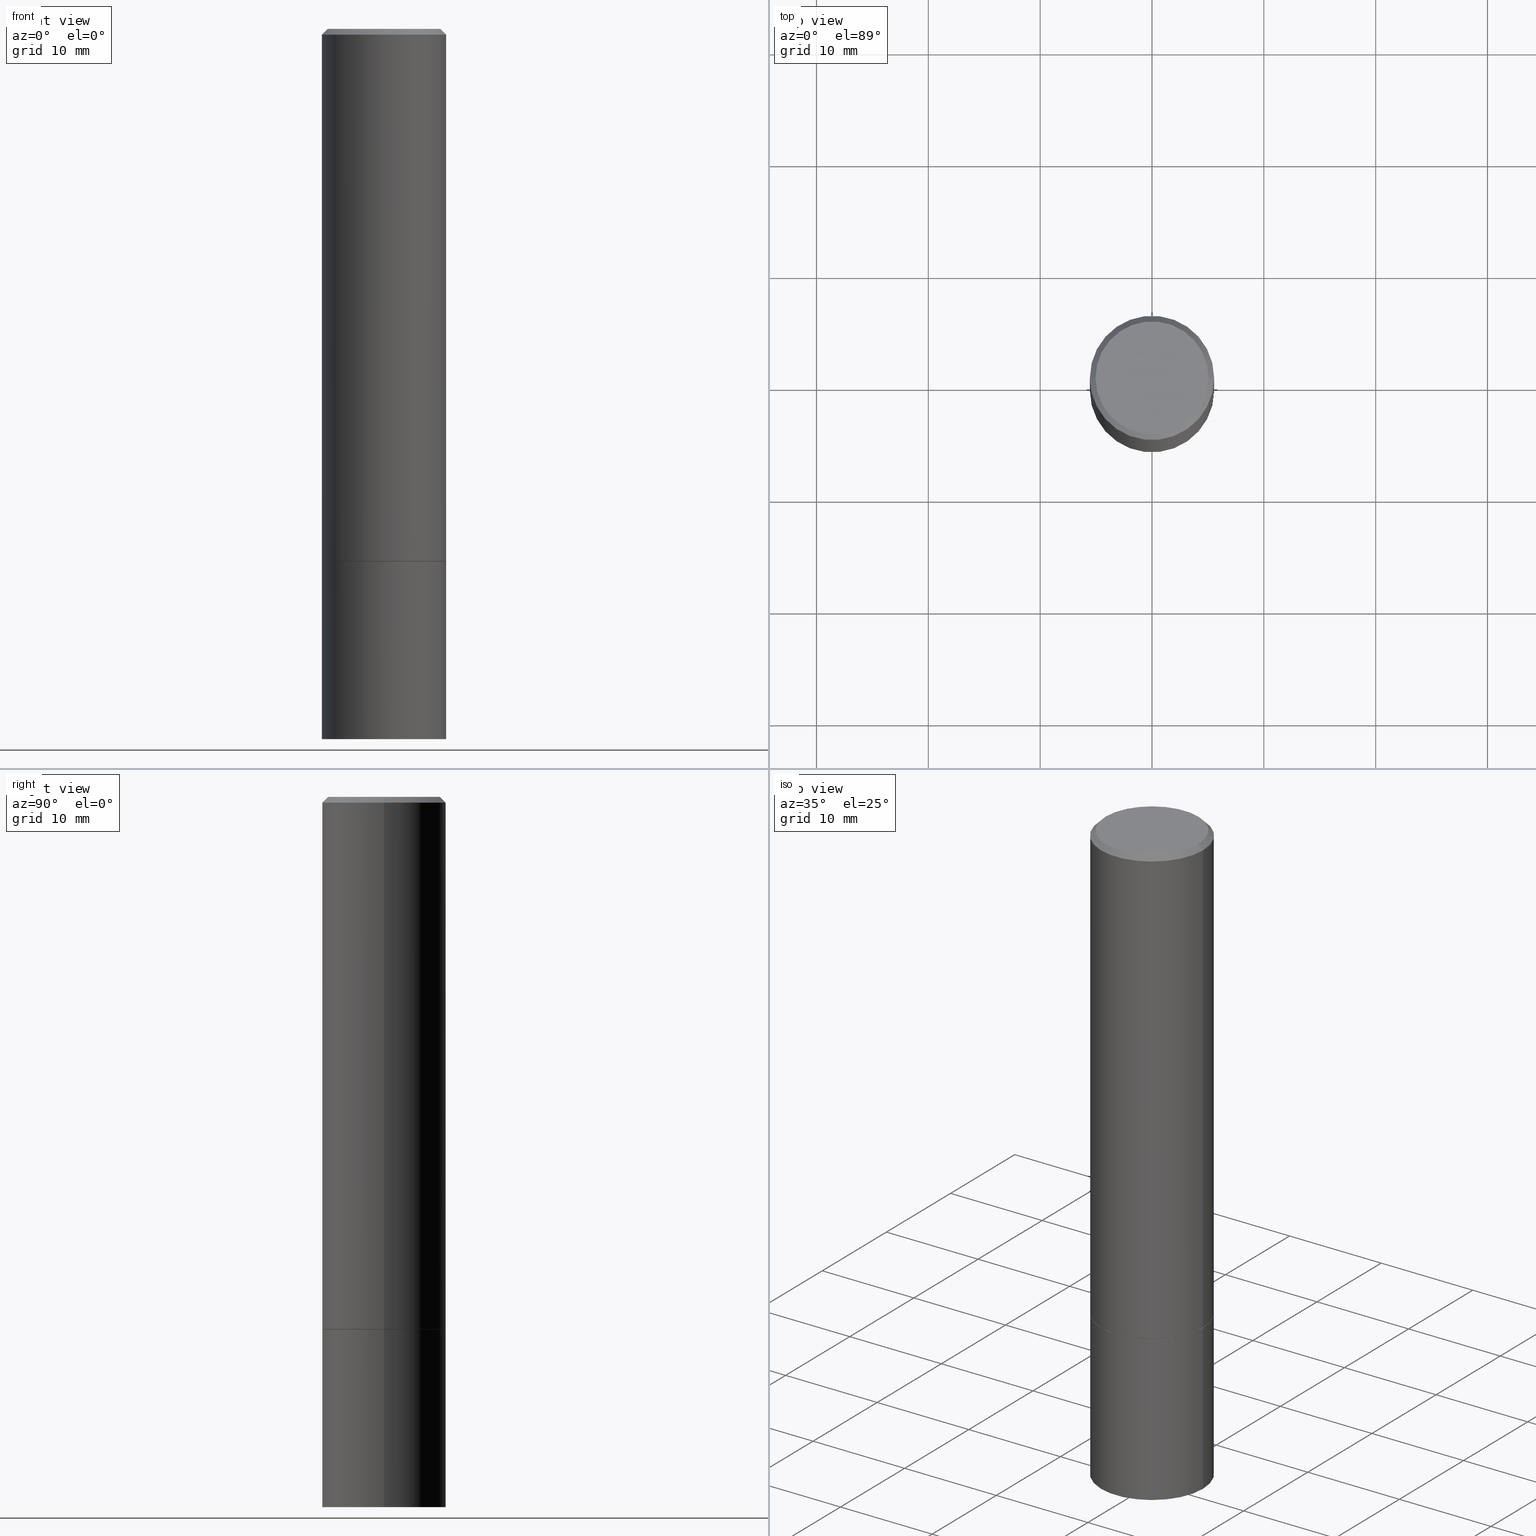
[diagram: canonical four-view strip — front | top / right | iso, engineering-drawing reading convention]
A machine part, canonical four-view strip (front | top / right | iso — engineering-drawing reading convention). The complete STEP part file that produces these views, byte-faithful:
ISO-10303-21;
HEADER;
FILE_DESCRIPTION (( 'STEP AP203' ),
    '1' );
FILE_NAME ('37159.STEP',
    '2024-02-27T20:41:24',
    ( '' ),
    ( '' ),
    'SwSTEP 2.0',
    'SolidWorks 2023',
    '' );
FILE_SCHEMA (( 'CONFIG_CONTROL_DESIGN' ));
ENDSEC;

DATA;
#1 = CARTESIAN_POINT ( 'NONE',  ( 4.585254011597131119E-29, -6.546527510330898707E-15, -1.875000000000000000 ) ) ;
#2 = DIRECTION ( 'NONE',  ( -1.000000000000000000, 6.982962677686266711E-15, 0.000000000000000000 ) ) ;
#3 = PRODUCT_RELATED_PRODUCT_CATEGORY ( 'detail', '', ( #193 ) ) ;
#4 = DIRECTION ( 'NONE',  ( -2.445468806185136597E-29, 3.491481338843145583E-15, 1.000000000000000000 ) ) ;
#5 = AXIS2_PLACEMENT_3D ( 'NONE', #1, #143, #146 ) ;
#6 = DATE_AND_TIME ( #173, #366 ) ;
#7 = APPLICATION_PROTOCOL_DEFINITION ( 'international standard', 'config_control_design', 1994, #184 ) ;
#8 = FACE_OUTER_BOUND ( 'NONE', #14, .T. ) ;
#9 = ORIENTED_EDGE ( 'NONE', *, *, #156, .T. ) ;
#10 = DIRECTION ( 'NONE',  ( 1.000000000000000000, -6.982962677686266711E-15, 4.875627135991462684E-29 ) ) ;
#11 = ORIENTED_EDGE ( 'NONE', *, *, #312, .F. ) ;
#12 = UNCERTAINTY_MEASURE_WITH_UNIT (LENGTH_MEASURE( 1.000000000000000082E-05 ), #211, 'distance_accuracy_value', 'NONE');
#13 = SECURITY_CLASSIFICATION_LEVEL ( 'unclassified' ) ;
#14 = EDGE_LOOP ( 'NONE', ( #22, #354, #36, #223 ) ) ;
#15 = CIRCLE ( 'NONE', #309, 0.2187500000000000000 ) ;
#16 = LOCAL_TIME ( 15, 41, 24.00000000000000000, #124 ) ;
#17 = EDGE_LOOP ( 'NONE', ( #101, #233, #216, #96 ) ) ;
#18 = DIRECTION ( 'NONE',  ( 1.000000000000000000, -6.982962677686266711E-15, 0.000000000000000000 ) ) ;
#19 = DATE_TIME_ROLE ( 'classification_date' ) ;
#20 = EDGE_CURVE ( 'NONE', #350, #247, #361, .T. ) ;
#21 = CARTESIAN_POINT ( 'NONE',  ( 4.585254011597131119E-29, -6.546527510330898707E-15, -1.875000000000000000 ) ) ;
#22 = ORIENTED_EDGE ( 'NONE', *, *, #360, .F. ) ;
#23 = AXIS2_PLACEMENT_3D ( 'NONE', #237, #240, #10 ) ;
#24 = CARTESIAN_POINT ( 'NONE',  ( 0.2177499999999999991, -8.067067633397082747E-15, -1.875000000000000000 ) ) ;
#25 = PRODUCT_DEFINITION_SHAPE ( 'NONE', 'NONE',  #352 ) ;
#26 = CARTESIAN_POINT ( 'NONE',  ( 4.890937612370285420E-31, -6.982962677686308865E-17, -0.02000000000000005246 ) ) ;
#27 = DIRECTION ( 'NONE',  ( -1.000000000000000000, 6.982962677686265922E-15, -4.876176775795935793E-29 ) ) ;
#28 = CIRCLE ( 'NONE', #23, 0.1987499999999997879 ) ;
#29 = CC_DESIGN_APPROVAL ( #252, ( #352 ) ) ;
#30 = FACE_OUTER_BOUND ( 'NONE', #90, .T. ) ;
#31 = CARTESIAN_POINT ( 'NONE',  ( 4.582808542790945516E-29, -6.543036028992054911E-15, -1.874000000000000110 ) ) ;
#32 = EDGE_CURVE ( 'NONE', #320, #100, #130, .T. ) ;
#33 = DIRECTION ( 'NONE',  ( 1.000000000000000000, -6.982962677686267499E-15, 0.000000000000000000 ) ) ;
#34 = AXIS2_PLACEMENT_3D ( 'NONE', #325, #107, #18 ) ;
#35 =( NAMED_UNIT ( * ) SI_UNIT ( $, .STERADIAN. ) SOLID_ANGLE_UNIT ( ) );
#36 = ORIENTED_EDGE ( 'NONE', *, *, #87, .T. ) ;
#37 = LENGTH_MEASURE_WITH_UNIT ( LENGTH_MEASURE( 0.02539999999999999897 ), #176 );
#38 = EDGE_LOOP ( 'NONE', ( #251, #123, #115, #262 ) ) ;
#39 = CARTESIAN_POINT ( 'NONE',  ( 0.2187500000000000000, -1.025622643285173500E-14, -2.500000000000000000 ) ) ;
#40 = VECTOR ( 'NONE', #357, 39.37007874015748143 ) ;
#41 = AXIS2_PLACEMENT_3D ( 'NONE', #82, #56, #33 ) ;
#42 = APPROVAL_STATUS ( 'not_yet_approved' ) ;
#43 = EDGE_CURVE ( 'NONE', #322, #52, #174, .T. ) ;
#44 = VERTEX_POINT ( 'NONE', #277 ) ;
#45 = DIRECTION ( 'NONE',  ( 1.000000000000000000, 0.000000000000000000, 0.000000000000000000 ) ) ;
#46 = ORIENTED_EDGE ( 'NONE', *, *, #151, .T. ) ;
#47 = DIRECTION ( 'NONE',  ( -2.445468806185136597E-29, 3.491481338843145583E-15, 1.000000000000000000 ) ) ;
#48 = CLOSED_SHELL ( 'NONE', ( #329, #140, #218, #83, #338, #64, #170, #246 ) ) ;
#49 = CIRCLE ( 'NONE', #5, 0.2187500000000000000 ) ;
#50 = CARTESIAN_POINT ( 'NONE',  ( -0.2177499999999999991, -4.999320703213280559E-15, -1.875000000000000000 ) ) ;
#51 = PERSON_AND_ORGANIZATION_ROLE ( 'design_supplier' ) ;
#52 = VERTEX_POINT ( 'NONE', #24 ) ;
#53 = CYLINDRICAL_SURFACE ( 'NONE', #283, 0.2187499999999998057 ) ;
#54 = DIRECTION ( 'NONE',  ( -2.445468806185136597E-29, 3.491481338843145583E-15, 1.000000000000000000 ) ) ;
#55 = EDGE_CURVE ( 'NONE', #322, #137, #157, .T. ) ;
#56 = DIRECTION ( 'NONE',  ( -2.445468806185136597E-29, 3.491481338843145583E-15, 1.000000000000000000 ) ) ;
#57 = CYLINDRICAL_SURFACE ( 'NONE', #289, 0.2187500000000000000 ) ;
#58 = CARTESIAN_POINT ( 'NONE',  ( 0.000000000000000000, 0.000000000000000000, 0.000000000000000000 ) ) ;
#59 = CC_DESIGN_SECURITY_CLASSIFICATION ( #235, ( #175 ) ) ;
#60 = CC_DESIGN_DATE_AND_TIME_ASSIGNMENT ( #162, #19, ( #235 ) ) ;
#61 = CYLINDRICAL_SURFACE ( 'NONE', #290, 0.2187500000000000000 ) ;
#62 = CARTESIAN_POINT ( 'NONE',  ( 4.585254011597131119E-29, -6.546527510330898707E-15, -1.875000000000000000 ) ) ;
#63 = PERSON_AND_ORGANIZATION_ROLE ( 'creator' ) ;
#64 = ADVANCED_FACE ( 'NONE', ( #331 ), #263, .T. ) ;
#65 = VECTOR ( 'NONE', #166, 39.37007874015748143 ) ;
#66 = APPROVAL_PERSON_ORGANIZATION ( #154, #288, #132 ) ;
#67 = DIRECTION ( 'NONE',  ( -2.445468806185136597E-29, 3.491481338843145583E-15, 1.000000000000000000 ) ) ;
#68 = ORIENTED_EDGE ( 'NONE', *, *, #257, .T. ) ;
#69 = EDGE_LOOP ( 'NONE', ( #155, #121 ) ) ;
#70 = CIRCLE ( 'NONE', #41, 0.2187500000000000000 ) ;
#71 = DIRECTION ( 'NONE',  ( 0.000000000000000000, 0.000000000000000000, 1.000000000000000000 ) ) ;
#72 = ORIENTED_EDGE ( 'NONE', *, *, #190, .T. ) ;
#73 = SHAPE_DEFINITION_REPRESENTATION ( #25, #327 ) ;
#74 = CARTESIAN_POINT ( 'NONE',  ( 0.2187500000000000000, -1.527523085743870843E-15, 1.066663669705360885E-29 ) ) ;
#75 = ORIENTED_EDGE ( 'NONE', *, *, #20, .F. ) ;
#76 = EDGE_LOOP ( 'NONE', ( #267, #215 ) ) ;
#77 = DIRECTION ( 'NONE',  ( -1.000000000000000000, 6.982962677686265922E-15, -4.876176775795935793E-29 ) ) ;
#78 = EDGE_LOOP ( 'NONE', ( #345, #318, #275, #278 ) ) ;
#79 = PLANE ( 'NONE',  #359 ) ;
#80 = DIRECTION ( 'NONE',  ( 1.000000000000000000, -6.982962677686266711E-15, 4.876176775795935232E-29 ) ) ;
#81 = APPLICATION_CONTEXT ( 'configuration controlled 3d designs of mechanical parts and assemblies' ) ;
#82 = CARTESIAN_POINT ( 'NONE',  ( 6.113672015462842613E-29, -8.728703347107864943E-15, -2.500000000000000000 ) ) ;
#83 = ADVANCED_FACE ( 'NONE', ( #159 ), #103, .T. ) ;
#84 = CARTESIAN_POINT ( 'NONE',  ( 1.387863832190143852E-15, 0.1987499999999997879, -7.110059660554760980E-16 ) ) ;
#85 = AXIS2_PLACEMENT_3D ( 'NONE', #144, #167, #169 ) ;
#86 = DIRECTION ( 'NONE',  ( -2.445468806185136597E-29, 3.491481338843145583E-15, 1.000000000000000000 ) ) ;
#87 = EDGE_CURVE ( 'NONE', #105, #136, #304, .T. ) ;
#88 = FACE_OUTER_BOUND ( 'NONE', #271, .T. ) ;
#89 = PERSON_AND_ORGANIZATION ( #341, #114 ) ;
#90 = EDGE_LOOP ( 'NONE', ( #9, #270 ) ) ;
#91 = MANIFOLD_SOLID_BREP ( 'Body-Move/Copy2[1]', #301 ) ;
#92 = ORIENTED_EDGE ( 'NONE', *, *, #296, .F. ) ;
#93 = VERTEX_POINT ( 'NONE', #131 ) ;
#94 = EDGE_CURVE ( 'NONE', #347, #136, #300, .T. ) ;
#95 = DATE_AND_TIME ( #266, #339 ) ;
#96 = ORIENTED_EDGE ( 'NONE', *, *, #87, .F. ) ;
#97 = VECTOR ( 'NONE', #161, 39.37007874015748143 ) ;
#98 = CC_DESIGN_APPROVAL ( #288, ( #235 ) ) ;
#99 = APPROVAL_DATE_TIME ( #220, #229 ) ;
#100 = VERTEX_POINT ( 'NONE', #221 ) ;
#101 = ORIENTED_EDGE ( 'NONE', *, *, #296, .T. ) ;
#102 = CARTESIAN_POINT ( 'NONE',  ( 0.2187499999999997224, -1.570563563789383461E-15, -0.02000000000000005246 ) ) ;
#103 = CONICAL_SURFACE ( 'NONE', #353, 0.2187499999999997224, 0.7853981633974459475 ) ;
#104 = APPROVAL_PERSON_ORGANIZATION ( #261, #252, #153 ) ;
#105 = VERTEX_POINT ( 'NONE', #185 ) ;
#106 = CC_DESIGN_PERSON_AND_ORGANIZATION_ASSIGNMENT ( #149, #231, ( #193 ) ) ;
#107 = DIRECTION ( 'NONE',  ( -2.445468806185136597E-29, 3.491481338843145583E-15, 1.000000000000000000 ) ) ;
#108 = FACE_OUTER_BOUND ( 'NONE', #298, .T. ) ;
#109 = FACE_OUTER_BOUND ( 'NONE', #69, .T. ) ;
#110 = DIRECTION ( 'NONE',  ( 2.438088387897960049E-29, -3.491481338843145188E-15, -1.000000000000000000 ) ) ;
#111 = ADVANCED_FACE ( 'NONE', ( #192 ), #328, .T. ) ;
#112 = PLANE ( 'NONE',  #333 ) ;
#113 = DIRECTION ( 'NONE',  ( -2.445468806185136597E-29, 3.491481338843145583E-15, 1.000000000000000000 ) ) ;
#114 = ORGANIZATION ( 'UNSPECIFIED', 'UNSPECIFIED', '' ) ;
#115 = ORIENTED_EDGE ( 'NONE', *, *, #20, .T. ) ;
#116 = CYLINDRICAL_SURFACE ( 'NONE', #219, 0.2187499999999998057 ) ;
#117 = ORIENTED_EDGE ( 'NONE', *, *, #94, .T. ) ;
#118 = AXIS2_PLACEMENT_3D ( 'NONE', #141, #308, #228 ) ;
#119 = LOCAL_TIME ( 15, 41, 24.00000000000000000, #248 ) ;
#120 = DIRECTION ( 'NONE',  ( -2.445468806185136877E-29, 3.491481338843145188E-15, 1.000000000000000000 ) ) ;
#121 = ORIENTED_EDGE ( 'NONE', *, *, #43, .F. ) ;
#122 = LINE ( 'NONE', #293, #321 ) ;
#123 = ORIENTED_EDGE ( 'NONE', *, *, #208, .T. ) ;
#124 = COORDINATED_UNIVERSAL_TIME_OFFSET ( 5, 0, .BEHIND. ) ;
#125 = EDGE_LOOP ( 'NONE', ( #295, #324, #68, #351 ) ) ;
#126 = VECTOR ( 'NONE', #168, 39.37007874015748143 ) ;
#127 = CC_DESIGN_PERSON_AND_ORGANIZATION_ASSIGNMENT ( #291, #63, ( #352 ) ) ;
#128 = CIRCLE ( 'NONE', #201, 0.2187499999999999445 ) ;
#129 = APPROVAL_ROLE ( '' ) ;
#130 = LINE ( 'NONE', #326, #65 ) ;
#131 = CARTESIAN_POINT ( 'NONE',  ( -0.1987499999999997879, 1.422778645578574712E-15, -3.414809992081311401E-17 ) ) ;
#132 = APPROVAL_ROLE ( '' ) ;
#133 = DIRECTION ( 'NONE',  ( 1.000000000000000000, -6.982962677686266711E-15, 4.876176775795936353E-29 ) ) ;
#134 = AXIS2_PLACEMENT_3D ( 'NONE', #21, #47, #253 ) ;
#135 = CALENDAR_DATE ( 2024, 27, 2 ) ;
#136 = VERTEX_POINT ( 'NONE', #191 ) ;
#137 = VERTEX_POINT ( 'NONE', #303 ) ;
#138 = CARTESIAN_POINT ( 'NONE',  ( 4.582808542790945516E-29, -6.543036028992054911E-15, -1.874000000000000110 ) ) ;
#139 = DESIGN_CONTEXT ( 'detailed design', #81, 'design' ) ;
#140 = ADVANCED_FACE ( 'NONE', ( #305 ), #53, .T. ) ;
#141 = CARTESIAN_POINT ( 'NONE',  ( 8.350811314681758556E-46, -1.192274536304357760E-31, -3.414809992080329023E-17 ) ) ;
#142 = CONICAL_SURFACE ( 'NONE', #209, 0.2177499999999999991, 0.7853981633973970977 ) ;
#143 = DIRECTION ( 'NONE',  ( -2.445468806185136597E-29, 3.491481338843145583E-15, 1.000000000000000000 ) ) ;
#144 = CARTESIAN_POINT ( 'NONE',  ( 4.585254011597131119E-29, -6.546527510330898707E-15, -1.875000000000000000 ) ) ;
#145 = CC_DESIGN_DATE_AND_TIME_ASSIGNMENT ( #6, #232, ( #352 ) ) ;
#146 = DIRECTION ( 'NONE',  ( 1.000000000000000000, -6.982962677686267499E-15, 0.000000000000000000 ) ) ;
#147 = VECTOR ( 'NONE', #358, 39.37007874015748143 ) ;
#148 = AXIS2_PLACEMENT_3D ( 'NONE', #62, #196, #344 ) ;
#149 = PERSON_AND_ORGANIZATION ( #341, #114 ) ;
#150 = ORIENTED_EDGE ( 'NONE', *, *, #177, .F. ) ;
#151 = EDGE_CURVE ( 'NONE', #350, #320, #15, .T. ) ;
#152 = CIRCLE ( 'NONE', #118, 0.1987499999999997879 ) ;
#153 = APPROVAL_ROLE ( '' ) ;
#154 = PERSON_AND_ORGANIZATION ( #341, #114 ) ;
#155 = ORIENTED_EDGE ( 'NONE', *, *, #190, .F. ) ;
#156 = EDGE_CURVE ( 'NONE', #93, #347, #152, .T. ) ;
#157 = LINE ( 'NONE', #50, #147 ) ;
#158 =( GEOMETRIC_REPRESENTATION_CONTEXT ( 3 ) GLOBAL_UNCERTAINTY_ASSIGNED_CONTEXT ( ( #12 ) ) GLOBAL_UNIT_ASSIGNED_CONTEXT ( ( #211, #204, #35 ) ) REPRESENTATION_CONTEXT ( 'NONE', 'WORKASPACE' ) );
#159 = FACE_OUTER_BOUND ( 'NONE', #125, .T. ) ;
#160 = CALENDAR_DATE ( 2024, 27, 2 ) ;
#161 = DIRECTION ( 'NONE',  ( -2.445468806185136877E-29, 3.491481338843145188E-15, 1.000000000000000000 ) ) ;
#162 = DATE_AND_TIME ( #135, #187 ) ;
#163 = ADVANCED_FACE ( 'NONE', ( #224 ), #57, .T. ) ;
#164 = CARTESIAN_POINT ( 'NONE',  ( 0.000000000000000000, 0.000000000000000000, 0.000000000000000000 ) ) ;
#165 = APPROVAL_PERSON_ORGANIZATION ( #89, #229, #129 ) ;
#166 = DIRECTION ( 'NONE',  ( -2.445468806185136877E-29, 3.491481338843145188E-15, 1.000000000000000000 ) ) ;
#167 = DIRECTION ( 'NONE',  ( -2.438088387897960049E-29, 3.491481338843145188E-15, 1.000000000000000000 ) ) ;
#168 = DIRECTION ( 'NONE',  ( 0.7071067811865112684, -2.468850131081876830E-15, 0.7071067811865837660 ) ) ;
#169 = DIRECTION ( 'NONE',  ( 1.000000000000000000, -6.982962677686265922E-15, 4.876176775795935793E-29 ) ) ;
#170 = ADVANCED_FACE ( 'NONE', ( #109 ), #226, .F. ) ;
#171 = CARTESIAN_POINT ( 'NONE',  ( 0.000000000000000000, 0.000000000000000000, 0.000000000000000000 ) ) ;
#172 = LINE ( 'NONE', #340, #126 ) ;
#173 = CALENDAR_DATE ( 2024, 27, 2 ) ;
#174 = CIRCLE ( 'NONE', #34, 0.2177499999999999991 ) ;
#175 = PRODUCT_DEFINITION_FORMATION_WITH_SPECIFIED_SOURCE ( 'ANY', '', #193, .NOT_KNOWN. ) ;
#176 =( LENGTH_UNIT ( ) NAMED_UNIT ( * ) SI_UNIT ( $, .METRE. ) );
#177 = EDGE_CURVE ( 'NONE', #52, #105, #172, .T. ) ;
#178 = CARTESIAN_POINT ( 'NONE',  ( 0.1987499999999997879, -1.467043770423237072E-15, -3.414809992079330621E-17 ) ) ;
#179 = CARTESIAN_POINT ( 'NONE',  ( 0.000000000000000000, 0.000000000000000000, 0.000000000000000000 ) ) ;
#180 = CC_DESIGN_APPROVAL ( #229, ( #175 ) ) ;
#181 = DIRECTION ( 'NONE',  ( 1.000000000000000000, -6.982962677686266711E-15, 0.000000000000000000 ) ) ;
#182 = EDGE_CURVE ( 'NONE', #44, #136, #316, .T. ) ;
#183 = ORIENTED_EDGE ( 'NONE', *, *, #312, .T. ) ;
#184 = APPLICATION_CONTEXT ( 'configuration controlled 3d designs of mechanical parts and assemblies' ) ;
#185 = CARTESIAN_POINT ( 'NONE',  ( 0.2187499999999999445, -8.070559114735925754E-15, -1.874000000000000110 ) ) ;
#186 = DIRECTION ( 'NONE',  ( 2.445468806185136597E-29, -3.491481338843145583E-15, -1.000000000000000000 ) ) ;
#187 = LOCAL_TIME ( 15, 41, 24.00000000000000000, #330 ) ;
#188 = AXIS2_PLACEMENT_3D ( 'NONE', #258, #113, #230 ) ;
#189 = DIRECTION ( 'NONE',  ( 2.438088387897960049E-29, -3.491481338843145188E-15, -1.000000000000000000 ) ) ;
#190 = EDGE_CURVE ( 'NONE', #52, #322, #365, .T. ) ;
#191 = CARTESIAN_POINT ( 'NONE',  ( 0.2187499999999997224, -1.570563563789383461E-15, -0.02000000000000005246 ) ) ;
#192 = FACE_OUTER_BOUND ( 'NONE', #76, .T. ) ;
#193 = PRODUCT ( '37159', '37159', '', ( #294 ) ) ;
#194 = AXIS2_PLACEMENT_3D ( 'NONE', #217, #189, #77 ) ;
#195 = CIRCLE ( 'NONE', #148, 0.2187500000000000000 ) ;
#196 = DIRECTION ( 'NONE',  ( -2.445468806185136597E-29, 3.491481338843145583E-15, 1.000000000000000000 ) ) ;
#197 = EDGE_CURVE ( 'NONE', #100, #247, #49, .T. ) ;
#198 = DIRECTION ( 'NONE',  ( 2.438088387897960049E-29, -3.491481338843145188E-15, -1.000000000000000000 ) ) ;
#199 = DIMENSIONAL_EXPONENTS ( 1.000000000000000000, 0.000000000000000000, 0.000000000000000000, 0.000000000000000000, 0.000000000000000000, 0.000000000000000000, 0.000000000000000000 ) ;
#200 = DIRECTION ( 'NONE',  ( -2.445468806185136597E-29, 3.491481338843145583E-15, 1.000000000000000000 ) ) ;
#201 = AXIS2_PLACEMENT_3D ( 'NONE', #31, #4, #332 ) ;
#202 = DIRECTION ( 'NONE',  ( -0.7071067811865459074, 2.468850131082239706E-15, -0.7071067811865492381 ) ) ;
#203 = DIRECTION ( 'NONE',  ( 1.000000000000000000, -6.982962677686269077E-15, 0.000000000000000000 ) ) ;
#204 =( NAMED_UNIT ( * ) PLANE_ANGLE_UNIT ( ) SI_UNIT ( $, .RADIAN. ) );
#205 = ORIENTED_EDGE ( 'NONE', *, *, #279, .T. ) ;
#206 = COORDINATED_UNIVERSAL_TIME_OFFSET ( 5, 0, .BEHIND. ) ;
#207 = ORIENTED_EDGE ( 'NONE', *, *, #257, .F. ) ;
#208 = EDGE_CURVE ( 'NONE', #320, #350, #70, .T. ) ;
#209 = AXIS2_PLACEMENT_3D ( 'NONE', #342, #67, #181 ) ;
#210 = CARTESIAN_POINT ( 'NONE',  ( -0.2177499999999999991, -4.994022248865058156E-15, -1.875000000000000000 ) ) ;
#211 =( CONVERSION_BASED_UNIT ( 'INCH', #37 ) LENGTH_UNIT ( ) NAMED_UNIT ( #199 ) );
#212 = ADVANCED_FACE ( 'NONE', ( #108 ), #79, .F. ) ;
#213 = COORDINATED_UNIVERSAL_TIME_OFFSET ( 5, 0, .BEHIND. ) ;
#214 = AXIS2_PLACEMENT_3D ( 'NONE', #26, #255, #2 ) ;
#215 = ORIENTED_EDGE ( 'NONE', *, *, #208, .F. ) ;
#216 = ORIENTED_EDGE ( 'NONE', *, *, #279, .F. ) ;
#217 = CARTESIAN_POINT ( 'NONE',  ( 1.527523085743931585E-15, 0.2187499999999912570, -2.500000000000000444 ) ) ;
#218 = ADVANCED_FACE ( 'NONE', ( #256 ), #243, .T. ) ;
#219 = AXIS2_PLACEMENT_3D ( 'NONE', #349, #234, #319 ) ;
#220 = DATE_AND_TIME ( #160, #16 ) ;
#221 = CARTESIAN_POINT ( 'NONE',  ( -0.2187500000000000000, -6.083303194244162668E-15, -1.875000000000000000 ) ) ;
#222 = PERSON_AND_ORGANIZATION ( #341, #114 ) ;
#223 = ORIENTED_EDGE ( 'NONE', *, *, #182, .F. ) ;
#224 = FACE_OUTER_BOUND ( 'NONE', #241, .T. ) ;
#225 = VECTOR ( 'NONE', #202, 39.37007874015748143 ) ;
#226 = PLANE ( 'NONE',  #85 ) ;
#227 = CARTESIAN_POINT ( 'NONE',  ( 4.890937612370285420E-31, -6.982962677686308865E-17, -0.02000000000000005246 ) ) ;
#228 = DIRECTION ( 'NONE',  ( 1.000000000000000000, -6.982962677686266711E-15, 4.875627135991462684E-29 ) ) ;
#229 = APPROVAL ( #269, 'UNSPECIFIED' ) ;
#230 = DIRECTION ( 'NONE',  ( 1.000000000000000000, -6.982962677686266711E-15, 0.000000000000000000 ) ) ;
#231 = PERSON_AND_ORGANIZATION_ROLE ( 'design_owner' ) ;
#232 = DATE_TIME_ROLE ( 'creation_date' ) ;
#233 = ORIENTED_EDGE ( 'NONE', *, *, #360, .T. ) ;
#234 = DIRECTION ( 'NONE',  ( -2.445468806185136597E-29, 3.491481338843145583E-15, 1.000000000000000000 ) ) ;
#235 = SECURITY_CLASSIFICATION ( '', '', #13 ) ;
#236 = EDGE_LOOP ( 'NONE', ( #238, #117, #205, #207 ) ) ;
#237 = CARTESIAN_POINT ( 'NONE',  ( 8.350811314681758556E-46, -1.192274536304357760E-31, -3.414809992080329023E-17 ) ) ;
#238 = ORIENTED_EDGE ( 'NONE', *, *, #348, .F. ) ;
#239 = CC_DESIGN_PERSON_AND_ORGANIZATION_ASSIGNMENT ( #276, #51, ( #175 ) ) ;
#240 = DIRECTION ( 'NONE',  ( -2.445468806185136597E-29, 3.491481338843145583E-15, 1.000000000000000000 ) ) ;
#241 = EDGE_LOOP ( 'NONE', ( #46, #265, #11, #75 ) ) ;
#242 = DATE_AND_TIME ( #274, #119 ) ;
#243 = CONICAL_SURFACE ( 'NONE', #214, 0.2187499999999997224, 0.7853981633974459475 ) ;
#244 = PERSON_AND_ORGANIZATION_ROLE ( 'classification_officer' ) ;
#245 = DIRECTION ( 'NONE',  ( -2.445468806185136877E-29, 3.491481338843145188E-15, 1.000000000000000000 ) ) ;
#246 = ADVANCED_FACE ( 'NONE', ( #30 ), #112, .F. ) ;
#247 = VERTEX_POINT ( 'NONE', #281 ) ;
#248 = COORDINATED_UNIVERSAL_TIME_OFFSET ( 5, 0, .BEHIND. ) ;
#249 = DIRECTION ( 'NONE',  ( -1.000000000000000000, 6.982962677686266711E-15, 0.000000000000000000 ) ) ;
#250 = APPROVAL_DATE_TIME ( #242, #288 ) ;
#251 = ORIENTED_EDGE ( 'NONE', *, *, #32, .F. ) ;
#252 = APPROVAL ( #42, 'UNSPECIFIED' ) ;
#253 = DIRECTION ( 'NONE',  ( 1.000000000000000000, -6.982962677686266711E-15, 0.000000000000000000 ) ) ;
#254 = LINE ( 'NONE', #282, #225 ) ;
#255 = DIRECTION ( 'NONE',  ( 2.445468806185136597E-29, -3.491481338843145583E-15, -1.000000000000000000 ) ) ;
#256 = FACE_OUTER_BOUND ( 'NONE', #236, .T. ) ;
#257 = EDGE_CURVE ( 'NONE', #93, #44, #254, .T. ) ;
#258 = CARTESIAN_POINT ( 'NONE',  ( 4.890937612370285420E-31, -6.982962677686308865E-17, -0.02000000000000005246 ) ) ;
#259 = AXIS2_PLACEMENT_3D ( 'NONE', #138, #86, #203 ) ;
#260 = ADVANCED_FACE ( 'NONE', ( #311 ), #61, .T. ) ;
#261 = PERSON_AND_ORGANIZATION ( #341, #114 ) ;
#262 = ORIENTED_EDGE ( 'NONE', *, *, #197, .F. ) ;
#263 = CONICAL_SURFACE ( 'NONE', #134, 0.2177499999999999991, 0.7853981633973970977 ) ;
#264 = APPLICATION_PROTOCOL_DEFINITION ( 'international standard', 'config_control_design', 1994, #81 ) ;
#265 = ORIENTED_EDGE ( 'NONE', *, *, #32, .T. ) ;
#266 = CALENDAR_DATE ( 2024, 27, 2 ) ;
#267 = ORIENTED_EDGE ( 'NONE', *, *, #151, .F. ) ;
#268 = CC_DESIGN_PERSON_AND_ORGANIZATION_ASSIGNMENT ( #222, #302, ( #175 ) ) ;
#269 = APPROVAL_STATUS ( 'not_yet_approved' ) ;
#270 = ORIENTED_EDGE ( 'NONE', *, *, #348, .T. ) ;
#271 = EDGE_LOOP ( 'NONE', ( #72, #292, #92, #150 ) ) ;
#272 = CIRCLE ( 'NONE', #259, 0.2187499999999999445 ) ;
#273 = EDGE_CURVE ( 'NONE', #137, #105, #128, .T. ) ;
#274 = CALENDAR_DATE ( 2024, 27, 2 ) ;
#275 = ORIENTED_EDGE ( 'NONE', *, *, #177, .T. ) ;
#276 = PERSON_AND_ORGANIZATION ( #341, #114 ) ;
#277 = CARTESIAN_POINT ( 'NONE',  ( -0.2187499999999997224, 1.457693458967005770E-15, -0.02000000000000005246 ) ) ;
#278 = ORIENTED_EDGE ( 'NONE', *, *, #273, .F. ) ;
#279 = EDGE_CURVE ( 'NONE', #136, #44, #310, .T. ) ;
#280 = CARTESIAN_POINT ( 'NONE',  ( 0.2187499999999998057, -1.527523085743869462E-15, 1.066663669705360184E-29 ) ) ;
#281 = CARTESIAN_POINT ( 'NONE',  ( 0.2187500000000000000, -8.074050596074770339E-15, -1.875000000000000000 ) ) ;
#282 = CARTESIAN_POINT ( 'NONE',  ( -0.2187499999999997224, 1.457693458967005770E-15, -0.02000000000000005246 ) ) ;
#283 = AXIS2_PLACEMENT_3D ( 'NONE', #164, #54, #133 ) ;
#284 = AXIS2_PLACEMENT_3D ( 'NONE', #334, #362, #364 ) ;
#285 = CARTESIAN_POINT ( 'NONE',  ( 1.527523085743916400E-15, 0.2187499999999934219, -1.875000000000000888 ) ) ;
#286 = DIRECTION ( 'NONE',  ( 1.000000000000000000, -6.982962677686266711E-15, 4.876176775795935232E-29 ) ) ;
#287 = DIRECTION ( 'NONE',  ( 1.000000000000000000, -6.982962677686266711E-15, 0.000000000000000000 ) ) ;
#288 = APPROVAL ( #355, 'UNSPECIFIED' ) ;
#289 = AXIS2_PLACEMENT_3D ( 'NONE', #58, #335, #80 ) ;
#290 = AXIS2_PLACEMENT_3D ( 'NONE', #171, #313, #286 ) ;
#291 = PERSON_AND_ORGANIZATION ( #341, #114 ) ;
#292 = ORIENTED_EDGE ( 'NONE', *, *, #55, .T. ) ;
#293 = CARTESIAN_POINT ( 'NONE',  ( -0.2187499999999998057, 1.554312234475217776E-15, -1.076017050993259781E-29 ) ) ;
#294 = MECHANICAL_CONTEXT ( 'NONE', #184, 'mechanical' ) ;
#295 = ORIENTED_EDGE ( 'NONE', *, *, #94, .F. ) ;
#296 = EDGE_CURVE ( 'NONE', #105, #137, #272, .T. ) ;
#297 = AXIS2_PLACEMENT_3D ( 'NONE', #179, #71, #45 ) ;
#298 = EDGE_LOOP ( 'NONE', ( #183, #315 ) ) ;
#299 = CARTESIAN_POINT ( 'NONE',  ( 6.113672015462842613E-29, -8.728703347107864943E-15, -2.500000000000000000 ) ) ;
#300 = LINE ( 'NONE', #102, #40 ) ;
#301 = CLOSED_SHELL ( 'NONE', ( #163, #111, #212, #260 ) ) ;
#302 = PERSON_AND_ORGANIZATION_ROLE ( 'creator' ) ;
#303 = CARTESIAN_POINT ( 'NONE',  ( -0.2187499999999999445, -1.752120593409238962E-15, -1.874000000000000110 ) ) ;
#304 = LINE ( 'NONE', #280, #346 ) ;
#305 = FACE_OUTER_BOUND ( 'NONE', #17, .T. ) ;
#306 = DIRECTION ( 'NONE',  ( -2.445468806185136597E-29, 3.491481338843145583E-15, 1.000000000000000000 ) ) ;
#307 = DIRECTION ( 'NONE',  ( 1.000000000000000000, -6.982962677686267499E-15, 0.000000000000000000 ) ) ;
#308 = DIRECTION ( 'NONE',  ( -2.445468806185136597E-29, 3.491481338843145583E-15, 1.000000000000000000 ) ) ;
#309 = AXIS2_PLACEMENT_3D ( 'NONE', #299, #200, #307 ) ;
#310 = CIRCLE ( 'NONE', #188, 0.2187499999999997224 ) ;
#311 = FACE_OUTER_BOUND ( 'NONE', #38, .T. ) ;
#312 = EDGE_CURVE ( 'NONE', #247, #100, #195, .T. ) ;
#313 = DIRECTION ( 'NONE',  ( -2.445468806185136597E-29, 3.491481338843145583E-15, 1.000000000000000000 ) ) ;
#314 = APPROVAL_DATE_TIME ( #95, #252 ) ;
#315 = ORIENTED_EDGE ( 'NONE', *, *, #197, .T. ) ;
#316 = CIRCLE ( 'NONE', #337, 0.2187499999999997224 ) ;
#317 = CARTESIAN_POINT ( 'NONE',  ( -0.2187500000000000000, -6.083303194244162668E-15, -2.500000000000000000 ) ) ;
#318 = ORIENTED_EDGE ( 'NONE', *, *, #43, .T. ) ;
#319 = DIRECTION ( 'NONE',  ( 1.000000000000000000, -6.982962677686266711E-15, 4.876176775795936353E-29 ) ) ;
#320 = VERTEX_POINT ( 'NONE', #317 ) ;
#321 = VECTOR ( 'NONE', #120, 39.37007874015748143 ) ;
#322 = VERTEX_POINT ( 'NONE', #210 ) ;
#323 = PERSON_AND_ORGANIZATION ( #341, #114 ) ;
#324 = ORIENTED_EDGE ( 'NONE', *, *, #156, .F. ) ;
#325 = CARTESIAN_POINT ( 'NONE',  ( 4.585254011597131119E-29, -6.546527510330898707E-15, -1.875000000000000000 ) ) ;
#326 = CARTESIAN_POINT ( 'NONE',  ( -0.2187500000000000000, 1.554312234475219157E-15, -1.076017050993260622E-29 ) ) ;
#327 = ADVANCED_BREP_SHAPE_REPRESENTATION ( '37159', ( #91, #343, #297 ), #158 ) ;
#328 = PLANE ( 'NONE',  #194 ) ;
#329 = ADVANCED_FACE ( 'NONE', ( #88 ), #142, .T. ) ;
#330 = COORDINATED_UNIVERSAL_TIME_OFFSET ( 5, 0, .BEHIND. ) ;
#331 = FACE_OUTER_BOUND ( 'NONE', #78, .T. ) ;
#332 = DIRECTION ( 'NONE',  ( 1.000000000000000000, -6.982962677686269077E-15, 0.000000000000000000 ) ) ;
#333 = AXIS2_PLACEMENT_3D ( 'NONE', #84, #110, #27 ) ;
#334 = CARTESIAN_POINT ( 'NONE',  ( 4.585254011597131119E-29, -6.546527510330898707E-15, -1.875000000000000000 ) ) ;
#335 = DIRECTION ( 'NONE',  ( -2.445468806185136597E-29, 3.491481338843145583E-15, 1.000000000000000000 ) ) ;
#336 = DIRECTION ( 'NONE',  ( -1.000000000000000000, 6.982962677686265922E-15, -4.876176775795935793E-29 ) ) ;
#337 = AXIS2_PLACEMENT_3D ( 'NONE', #227, #306, #287 ) ;
#338 = ADVANCED_FACE ( 'NONE', ( #8 ), #116, .T. ) ;
#339 = LOCAL_TIME ( 15, 41, 24.00000000000000000, #206 ) ;
#340 = CARTESIAN_POINT ( 'NONE',  ( 0.2177499999999999991, -8.067067633397082747E-15, -1.875000000000000000 ) ) ;
#341 = PERSON ( 'UNSPECIFIED', 'UNSPECIFIED', 'UNSPECIFIED', ('UNSPECIFIED'), ('UNSPECIFIED'), ('UNSPECIFIED') ) ;
#342 = CARTESIAN_POINT ( 'NONE',  ( 4.585254011597131119E-29, -6.546527510330898707E-15, -1.875000000000000000 ) ) ;
#343 = MANIFOLD_SOLID_BREP ( 'Body-Move/Copy2[2]', #48 ) ;
#344 = DIRECTION ( 'NONE',  ( 1.000000000000000000, -6.982962677686267499E-15, 0.000000000000000000 ) ) ;
#345 = ORIENTED_EDGE ( 'NONE', *, *, #55, .F. ) ;
#346 = VECTOR ( 'NONE', #245, 39.37007874015748143 ) ;
#347 = VERTEX_POINT ( 'NONE', #178 ) ;
#348 = EDGE_CURVE ( 'NONE', #347, #93, #28, .T. ) ;
#349 = CARTESIAN_POINT ( 'NONE',  ( 0.000000000000000000, 0.000000000000000000, 0.000000000000000000 ) ) ;
#350 = VERTEX_POINT ( 'NONE', #39 ) ;
#351 = ORIENTED_EDGE ( 'NONE', *, *, #182, .T. ) ;
#352 = PRODUCT_DEFINITION ( 'UNKNOWN', '', #175, #139 ) ;
#353 = AXIS2_PLACEMENT_3D ( 'NONE', #356, #186, #249 ) ;
#354 = ORIENTED_EDGE ( 'NONE', *, *, #273, .T. ) ;
#355 = APPROVAL_STATUS ( 'not_yet_approved' ) ;
#356 = CARTESIAN_POINT ( 'NONE',  ( 4.890937612370285420E-31, -6.982962677686308865E-17, -0.02000000000000005246 ) ) ;
#357 = DIRECTION ( 'NONE',  ( 0.7071067811865459074, -7.319954787623251312E-15, -0.7071067811865492381 ) ) ;
#358 = DIRECTION ( 'NONE',  ( -0.7071067811865112684, 7.493145998870223209E-15, 0.7071067811865837660 ) ) ;
#359 = AXIS2_PLACEMENT_3D ( 'NONE', #285, #198, #336 ) ;
#360 = EDGE_CURVE ( 'NONE', #137, #44, #122, .T. ) ;
#361 = LINE ( 'NONE', #74, #97 ) ;
#362 = DIRECTION ( 'NONE',  ( -2.445468806185136597E-29, 3.491481338843145583E-15, 1.000000000000000000 ) ) ;
#363 = CC_DESIGN_PERSON_AND_ORGANIZATION_ASSIGNMENT ( #323, #244, ( #235 ) ) ;
#364 = DIRECTION ( 'NONE',  ( 1.000000000000000000, -6.982962677686266711E-15, 0.000000000000000000 ) ) ;
#365 = CIRCLE ( 'NONE', #284, 0.2177499999999999991 ) ;
#366 = LOCAL_TIME ( 15, 41, 24.00000000000000000, #213 ) ;
ENDSEC;
END-ISO-10303-21;
